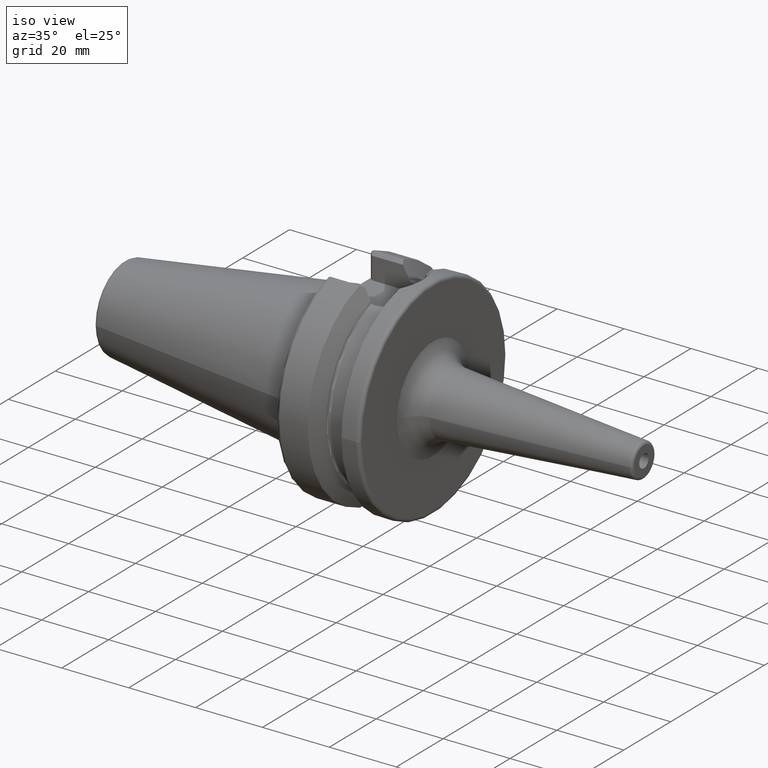
[diagram: clean part render]
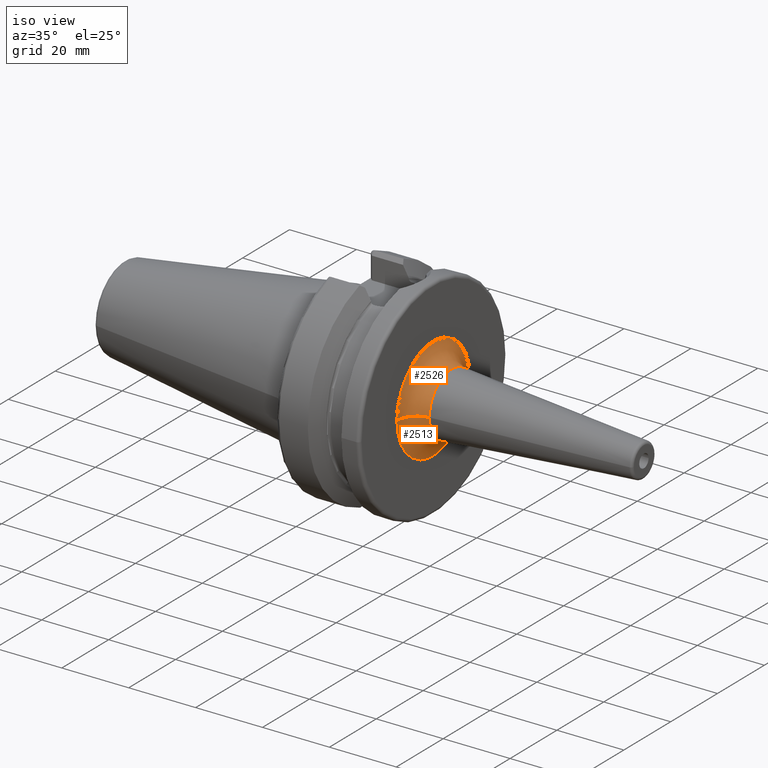
[diagram: same view with one multi-face feature highlighted, each face labeled with its STEP entity id]
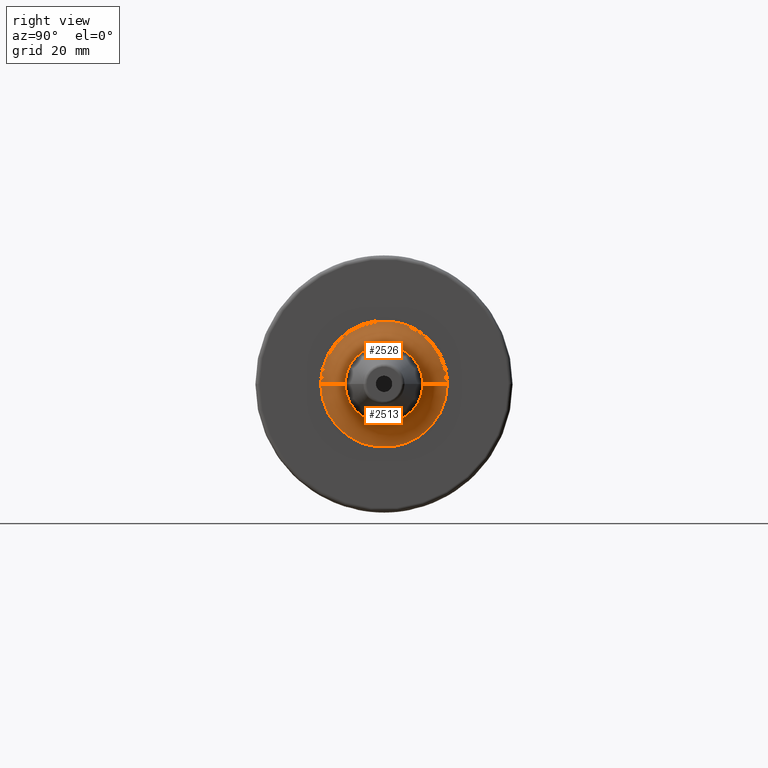
[diagram: same view with one multi-face feature highlighted, each face labeled with its STEP entity id]
A machine part, iso view. The highlighted faces form ONE feature: a constant-radius fillet chain: 2 tangent blend faces with common blend radius 6 mm. The faces share edges in the B-rep.
A second angle (right view) of the same feature is appended — it is thin or edge-on in the first view.
Their STEP definitions:
[1] entity #2526 (Torus):
#841=CARTESIAN_POINT('',(2.7E1,0.E0,0.E0));
#842=DIRECTION('',(1.E0,0.E0,0.E0));
#843=DIRECTION('',(0.E0,1.E0,0.E0));
#844=AXIS2_PLACEMENT_3D('',#841,#842,#843);
#846=CARTESIAN_POINT('',(3.3E1,-1.550455047990E1,3.574285312169E-11));
#847=DIRECTION('',(0.E0,-2.305315660589E-12,-1.E0));
#848=DIRECTION('',(-1.E0,3.777718878458E-13,0.E0));
#849=AXIS2_PLACEMENT_3D('',#846,#847,#848);
#851=CARTESIAN_POINT('',(3.3E1,1.550455047990E1,-3.574490703429E-11));
#852=DIRECTION('',(0.E0,2.305447499573E-12,1.E0));
#853=DIRECTION('',(-1.E0,-3.774758283726E-13,0.E0));
#854=AXIS2_PLACEMENT_3D('',#851,#852,#853);
#861=CARTESIAN_POINT('',(3.252924542563E1,0.E0,0.E0));
#862=DIRECTION('',(1.E0,0.E0,0.E0));
#863=DIRECTION('',(0.E0,1.E0,0.E0));
#864=AXIS2_PLACEMENT_3D('',#861,#862,#863);
#1383=CARTESIAN_POINT('',(2.7E1,-1.550455047990E1,-1.622998340522E-14));
#1384=CARTESIAN_POINT('',(2.7E1,1.550455047990E1,1.433122359348E-14));
#1385=VERTEX_POINT('',#1383);
#1386=VERTEX_POINT('',#1384);
#1387=CARTESIAN_POINT('',(3.252924542563E1,-9.523046477501E0,0.E0));
#1388=CARTESIAN_POINT('',(3.252924542563E1,9.523046477501E0,0.E0));
#1389=VERTEX_POINT('',#1387);
#1390=VERTEX_POINT('',#1388);
#2514=CARTESIAN_POINT('',(3.3E1,0.E0,0.E0));
#2515=DIRECTION('',(1.E0,0.E0,0.E0));
#2516=DIRECTION('',(0.E0,9.997886571691E-1,-2.055823426054E-2));
#2517=AXIS2_PLACEMENT_3D('',#2514,#2515,#2516);
#2518=TOROIDAL_SURFACE('',#2517,1.550455047990E1,6.E0);
#2519=ORIENTED_EDGE('',*,*,#2494,.F.);
#2520=ORIENTED_EDGE('',*,*,#2509,.T.);
#2522=ORIENTED_EDGE('',*,*,#2521,.T.);
#2523=ORIENTED_EDGE('',*,*,#2505,.F.);
#2524=EDGE_LOOP('',(#2519,#2520,#2522,#2523));
#2525=FACE_OUTER_BOUND('',#2524,.F.);
#2526=ADVANCED_FACE('',(#2525),#2518,.F.);
#845=CIRCLE('',#844,1.550455047990E1);
#850=CIRCLE('',#849,6.E0);
#855=CIRCLE('',#854,6.E0);
#865=CIRCLE('',#864,9.523046477501E0);
#2494=EDGE_CURVE('',#1386,#1385,#845,.T.);
#2505=EDGE_CURVE('',#1385,#1389,#850,.T.);
#2509=EDGE_CURVE('',#1386,#1390,#855,.T.);
#2521=EDGE_CURVE('',#1390,#1389,#865,.T.);
[2] entity #2513 (Torus):
#836=CARTESIAN_POINT('',(2.7E1,0.E0,0.E0));
#837=DIRECTION('',(1.E0,0.E0,0.E0));
#838=DIRECTION('',(0.E0,-1.E0,0.E0));
#839=AXIS2_PLACEMENT_3D('',#836,#837,#838);
#846=CARTESIAN_POINT('',(3.3E1,-1.550455047990E1,3.574285312169E-11));
#847=DIRECTION('',(0.E0,-2.305315660589E-12,-1.E0));
#848=DIRECTION('',(-1.E0,3.777718878458E-13,0.E0));
#849=AXIS2_PLACEMENT_3D('',#846,#847,#848);
#851=CARTESIAN_POINT('',(3.3E1,1.550455047990E1,-3.574490703429E-11));
#852=DIRECTION('',(0.E0,2.305447499573E-12,1.E0));
#853=DIRECTION('',(-1.E0,-3.774758283726E-13,0.E0));
#854=AXIS2_PLACEMENT_3D('',#851,#852,#853);
#885=CARTESIAN_POINT('',(3.252924542563E1,0.E0,0.E0));
#886=DIRECTION('',(1.E0,0.E0,0.E0));
#887=DIRECTION('',(0.E0,-1.E0,0.E0));
#888=AXIS2_PLACEMENT_3D('',#885,#886,#887);
#1383=CARTESIAN_POINT('',(2.7E1,-1.550455047990E1,-1.622998340522E-14));
#1384=CARTESIAN_POINT('',(2.7E1,1.550455047990E1,1.433122359348E-14));
#1385=VERTEX_POINT('',#1383);
#1386=VERTEX_POINT('',#1384);
#1387=CARTESIAN_POINT('',(3.252924542563E1,-9.523046477501E0,0.E0));
#1388=CARTESIAN_POINT('',(3.252924542563E1,9.523046477501E0,0.E0));
#1389=VERTEX_POINT('',#1387);
#1390=VERTEX_POINT('',#1388);
#2499=CARTESIAN_POINT('',(3.3E1,0.E0,0.E0));
#2500=DIRECTION('',(1.E0,0.E0,0.E0));
#2501=DIRECTION('',(0.E0,-9.997886571691E-1,2.055823426054E-2));
#2502=AXIS2_PLACEMENT_3D('',#2499,#2500,#2501);
#2503=TOROIDAL_SURFACE('',#2502,1.550455047990E1,6.E0);
#2504=ORIENTED_EDGE('',*,*,#2492,.F.);
#2506=ORIENTED_EDGE('',*,*,#2505,.T.);
#2508=ORIENTED_EDGE('',*,*,#2507,.T.);
#2510=ORIENTED_EDGE('',*,*,#2509,.F.);
#2511=EDGE_LOOP('',(#2504,#2506,#2508,#2510));
#2512=FACE_OUTER_BOUND('',#2511,.F.);
#2513=ADVANCED_FACE('',(#2512),#2503,.F.);
#840=CIRCLE('',#839,1.550455047990E1);
#850=CIRCLE('',#849,6.E0);
#855=CIRCLE('',#854,6.E0);
#889=CIRCLE('',#888,9.523046477501E0);
#2492=EDGE_CURVE('',#1385,#1386,#840,.T.);
#2505=EDGE_CURVE('',#1385,#1389,#850,.T.);
#2507=EDGE_CURVE('',#1389,#1390,#889,.T.);
#2509=EDGE_CURVE('',#1386,#1390,#855,.T.);